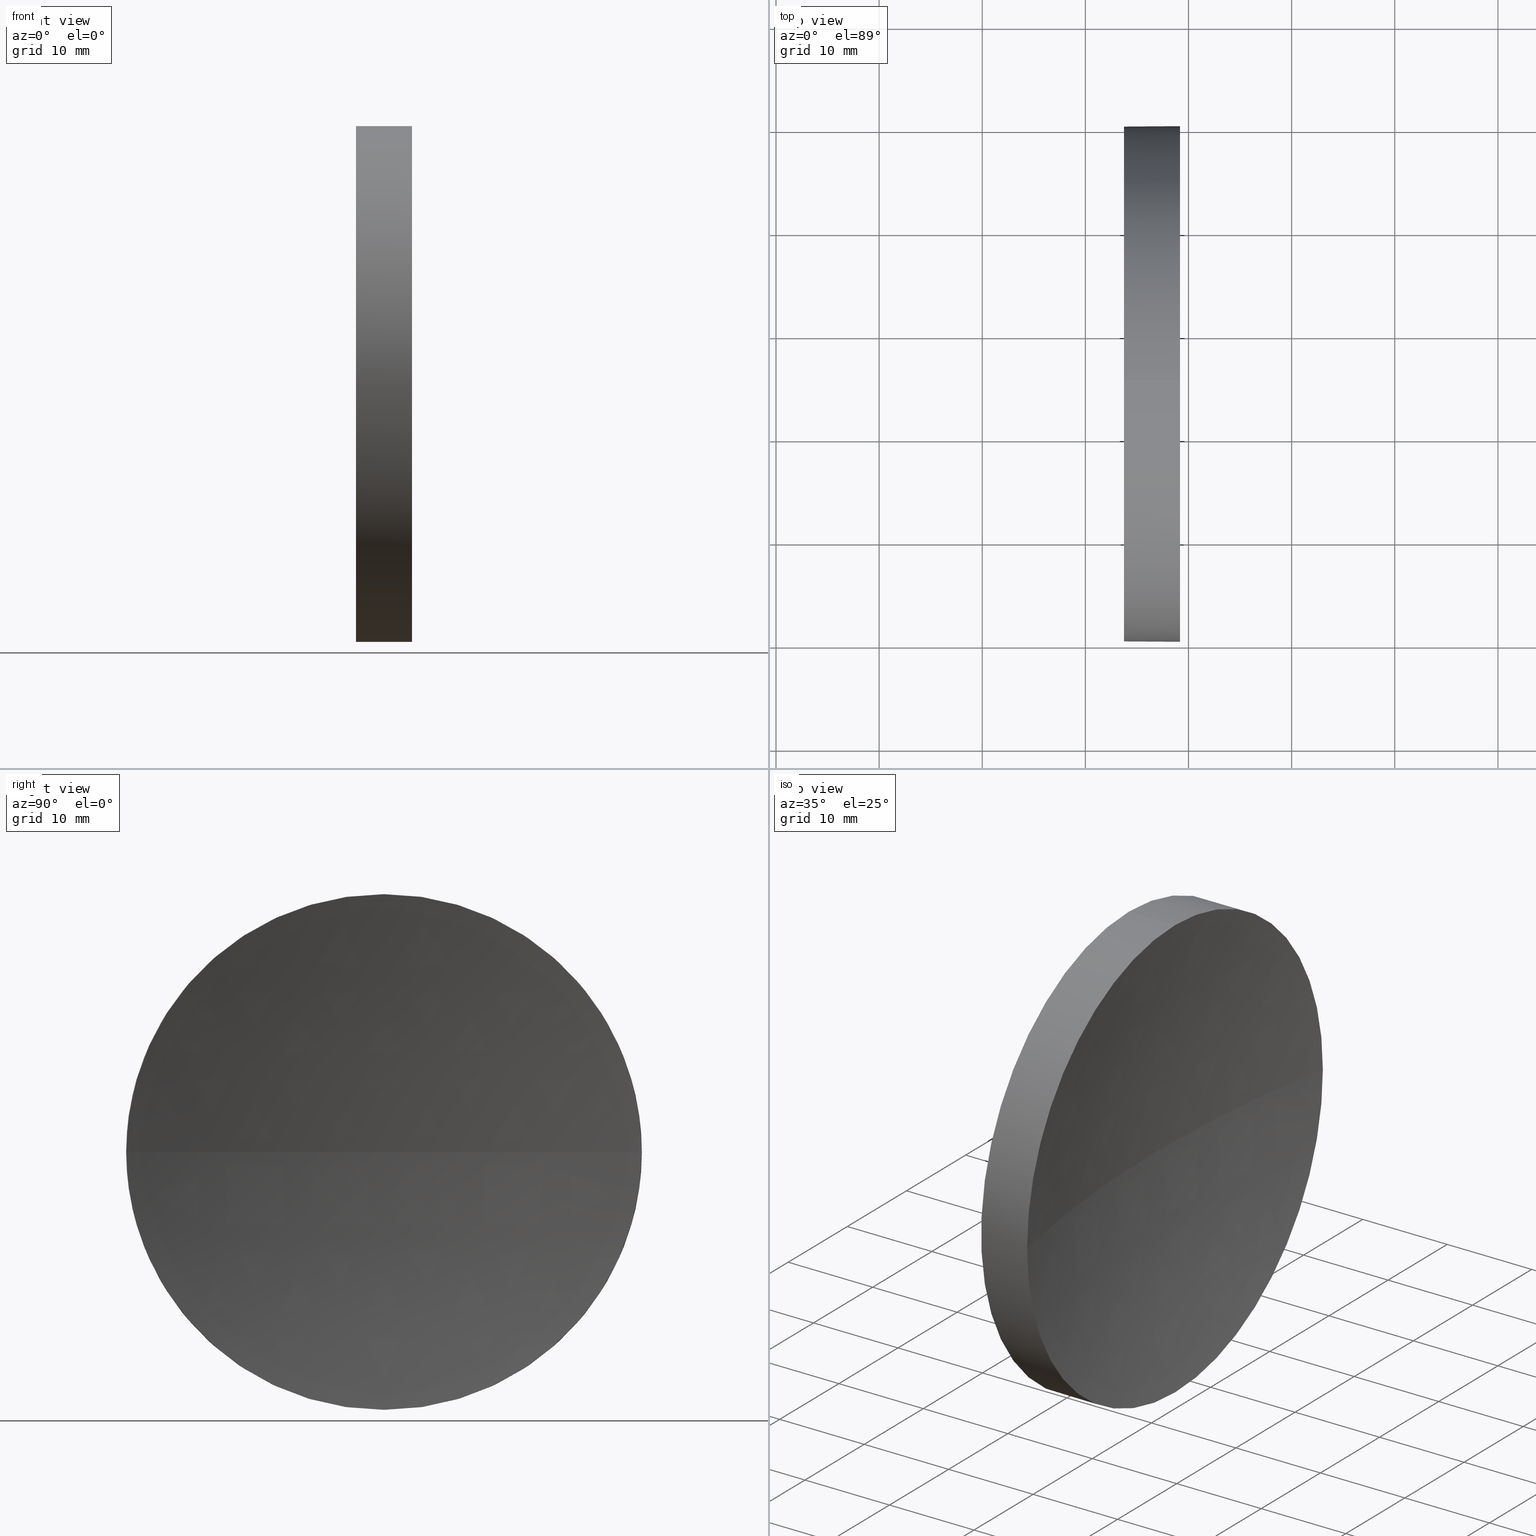
[diagram: canonical four-view strip — front | top / right | iso, engineering-drawing reading convention]
A machine part, canonical four-view strip (front | top / right | iso — engineering-drawing reading convention). The complete STEP part file that produces these views, byte-faithful:
ISO-10303-21;
HEADER;
FILE_DESCRIPTION (( 'STEP AP214' ),
    '1' );
FILE_NAME ('120058.STEP',
    '2019-06-18T01:45:30',
    ( '' ),
    ( '' ),
    'SwSTEP 2.0',
    'SolidWorks 2016',
    '' );
FILE_SCHEMA (( 'AUTOMOTIVE_DESIGN' ));
ENDSEC;

DATA;
#1 = SURFACE_STYLE_USAGE ( .BOTH. , #170 ) ;
#2 = FACE_OUTER_BOUND ( 'NONE', #151, .T. ) ;
#3 = ADVANCED_FACE ( 'NONE', ( #9 ), #111, .F. ) ;
#4 = AXIS2_PLACEMENT_3D ( 'NONE', #158, #65, #68 ) ;
#5 = EDGE_CURVE ( 'NONE', #178, #23, #133, .T. ) ;
#6 = ORIENTED_EDGE ( 'NONE', *, *, #5, .T. ) ;
#7 = DIRECTION ( 'NONE',  ( -1.000000000000000000, -0.0000000000000000000, -0.0000000000000000000 ) ) ;
#8 = FACE_OUTER_BOUND ( 'NONE', #156, .T. ) ;
#9 = FACE_OUTER_BOUND ( 'NONE', #19, .T. ) ;
#10 = CYLINDRICAL_SURFACE ( 'NONE', #149, 24.99999999999998600 ) ;
#11 = ORIENTED_EDGE ( 'NONE', *, *, #84, .T. ) ;
#12 =( LENGTH_UNIT ( ) NAMED_UNIT ( * ) SI_UNIT ( .MILLI., .METRE. ) );
#13 = CARTESIAN_POINT ( 'NONE',  ( 113.7394371346435000, 65.15563045701519200, 24.99999999999999300 ) ) ;
#14 = ORIENTED_EDGE ( 'NONE', *, *, #129, .T. ) ;
#15 = DIRECTION ( 'NONE',  ( 0.0000000000000000000, 0.0000000000000000000, 1.000000000000000000 ) ) ;
#16 = DIRECTION ( 'NONE',  ( -1.000000000000000000, -0.0000000000000000000, -0.0000000000000000000 ) ) ;
#17 =( LENGTH_UNIT ( ) NAMED_UNIT ( * ) SI_UNIT ( .MILLI., .METRE. ) );
#18 = AXIS2_PLACEMENT_3D ( 'NONE', #35, #63, #175 ) ;
#19 = EDGE_LOOP ( 'NONE', ( #145, #11, #109, #75 ) ) ;
#20 = CIRCLE ( 'NONE', #43, 24.99999999999998200 ) ;
#21 = EDGE_CURVE ( 'NONE', #163, #178, #144, .T. ) ;
#22 = CIRCLE ( 'NONE', #92, 24.99999999999998200 ) ;
#23 = VERTEX_POINT ( 'NONE', #13 ) ;
#24 = SURFACE_SIDE_STYLE ('',( #166 ) ) ;
#25 = CIRCLE ( 'NONE', #120, 129.2399999999999800 ) ;
#26 = CARTESIAN_POINT ( 'NONE',  ( 119.1804718391806000, 65.15563045701519200, 0.0000000000000000000 ) ) ;
#27 = PLANE ( 'NONE',  #108 ) ;
#28 = ORIENTED_EDGE ( 'NONE', *, *, #21, .T. ) ;
#29 = DIRECTION ( 'NONE',  ( 1.000000000000000000, 0.0000000000000000000, 0.0000000000000000000 ) ) ;
#30 = UNCERTAINTY_MEASURE_WITH_UNIT (LENGTH_MEASURE( 1.000000000000000100E-005 ), #69, 'distance_accuracy_value', 'NONE');
#31 = DIRECTION ( 'NONE',  ( 0.0000000000000000000, 0.0000000000000000000, 1.000000000000000000 ) ) ;
#32 = DIRECTION ( 'NONE',  ( 0.0000000000000000000, 0.0000000000000000000, 1.000000000000000000 ) ) ;
#33 = AXIS2_PLACEMENT_3D ( 'NONE', #138, #102, #137 ) ;
#34 = PRODUCT ( '120058', '120058', '', ( #185 ) ) ;
#35 = CARTESIAN_POINT ( 'NONE',  ( 119.1804718391806000, 65.15563045701519200, 0.0000000000000000000 ) ) ;
#36 = MECHANICAL_DESIGN_GEOMETRIC_PRESENTATION_REPRESENTATION (  '', ( #136 ), #122 ) ;
#37 = ORIENTED_EDGE ( 'NONE', *, *, #112, .T. ) ;
#38 = PRODUCT_RELATED_PRODUCT_CATEGORY ( 'part', '', ( #34 ) ) ;
#39 = PRODUCT_DEFINITION ( 'δ֪', '', #179, #96 ) ;
#40 = CIRCLE ( 'NONE', #80, 129.2399999999999800 ) ;
#41 = APPLICATION_CONTEXT ( 'automotive_design' ) ;
#42 = FACE_OUTER_BOUND ( 'NONE', #56, .T. ) ;
#43 = AXIS2_PLACEMENT_3D ( 'NONE', #107, #130, #31 ) ;
#44 = DIRECTION ( 'NONE',  ( 0.0000000000000000000, 0.0000000000000000000, 1.000000000000000000 ) ) ;
#45 = DIRECTION ( 'NONE',  ( 0.0000000000000000000, -1.000000000000000000, 0.0000000000000000000 ) ) ;
#46 = ORIENTED_EDGE ( 'NONE', *, *, #5, .F. ) ;
#47 = CARTESIAN_POINT ( 'NONE',  ( 116.7394371346435000, 65.15563045701517800, 0.0000000000000000000 ) ) ;
#48 = ADVANCED_FACE ( 'NONE', ( #42 ), #27, .F. ) ;
#49 = CARTESIAN_POINT ( 'NONE',  ( 105.6218371238301200, 65.15563045701519200, 24.99999999999998600 ) ) ;
#50 = CARTESIAN_POINT ( 'NONE',  ( 119.1804718391806000, 65.15563045701519200, -24.99999999999998200 ) ) ;
#51 = ORIENTED_EDGE ( 'NONE', *, *, #169, .T. ) ;
#52 = ORIENTED_EDGE ( 'NONE', *, *, #72, .T. ) ;
#53 = ORIENTED_EDGE ( 'NONE', *, *, #66, .T. ) ;
#54 = UNCERTAINTY_MEASURE_WITH_UNIT (LENGTH_MEASURE( 1.000000000000000100E-005 ), #12, 'distance_accuracy_value', 'NONE');
#55 = SPHERICAL_SURFACE ( 'NONE', #119, 129.2399999999999800 ) ;
#56 = EDGE_LOOP ( 'NONE', ( #165, #6 ) ) ;
#57 =( NAMED_UNIT ( * ) SI_UNIT ( $, .STERADIAN. ) SOLID_ANGLE_UNIT ( ) );
#58 = ORIENTED_EDGE ( 'NONE', *, *, #169, .F. ) ;
#59 = DIRECTION ( 'NONE',  ( -1.000000000000000000, -0.0000000000000000000, -0.0000000000000000000 ) ) ;
#60 = MECHANICAL_DESIGN_GEOMETRIC_PRESENTATION_REPRESENTATION (  '', ( #142 ), #78 ) ;
#61 = ADVANCED_FACE ( 'NONE', ( #8 ), #10, .T. ) ;
#62 = CARTESIAN_POINT ( 'NONE',  ( 113.7394371346435000, 65.15563045701519200, 0.0000000000000000000 ) ) ;
#63 = DIRECTION ( 'NONE',  ( -1.000000000000000000, -0.0000000000000000000, -0.0000000000000000000 ) ) ;
#64 = CARTESIAN_POINT ( 'NONE',  ( 119.1804718391806000, 65.15563045701519200, 0.0000000000000000000 ) ) ;
#65 = DIRECTION ( 'NONE',  ( 0.0000000000000000000, 0.0000000000000000000, 1.000000000000000000 ) ) ;
#66 = EDGE_CURVE ( 'NONE', #131, #23, #116, .T. ) ;
#67 = ADVANCED_BREP_SHAPE_REPRESENTATION ( '120058', ( #110, #4 ), #89 ) ;
#68 = DIRECTION ( 'NONE',  ( 1.000000000000000000, 0.0000000000000000000, 0.0000000000000000000 ) ) ;
#69 =( LENGTH_UNIT ( ) NAMED_UNIT ( * ) SI_UNIT ( .MILLI., .METRE. ) );
#70 = DIRECTION ( 'NONE',  ( 0.0000000000000000000, -1.000000000000000000, -1.224646799147353200E-016 ) ) ;
#71 = FILL_AREA_STYLE ('',( #150 ) ) ;
#72 = EDGE_CURVE ( 'NONE', #97, #163, #181, .T. ) ;
#73 = DIRECTION ( 'NONE',  ( -1.000000000000000000, -0.0000000000000000000, -0.0000000000000000000 ) ) ;
#74 = DIRECTION ( 'NONE',  ( 0.0000000000000000000, 0.0000000000000000000, 1.000000000000000000 ) ) ;
#75 = ORIENTED_EDGE ( 'NONE', *, *, #129, .F. ) ;
#76 = CARTESIAN_POINT ( 'NONE',  ( 245.9794371346434900, 65.15563045701519200, 0.0000000000000000000 ) ) ;
#77 = DIRECTION ( 'NONE',  ( -1.000000000000000000, 0.0000000000000000000, 0.0000000000000000000 ) ) ;
#78 =( GEOMETRIC_REPRESENTATION_CONTEXT ( 3 ) GLOBAL_UNCERTAINTY_ASSIGNED_CONTEXT ( ( #30 ) ) GLOBAL_UNIT_ASSIGNED_CONTEXT ( ( #69, #135, #57 ) ) REPRESENTATION_CONTEXT ( 'NONE', 'WORKASPACE' ) );
#79 = EDGE_LOOP ( 'NONE', ( #104, #148, #58, #160 ) ) ;
#80 = AXIS2_PLACEMENT_3D ( 'NONE', #113, #100, #70 ) ;
#81 = ORIENTED_EDGE ( 'NONE', *, *, #21, .F. ) ;
#82 =( NAMED_UNIT ( * ) SI_UNIT ( $, .STERADIAN. ) SOLID_ANGLE_UNIT ( ) );
#83 = DIRECTION ( 'NONE',  ( -1.000000000000000000, -0.0000000000000000000, -0.0000000000000000000 ) ) ;
#84 = EDGE_CURVE ( 'NONE', #97, #85, #40, .T. ) ;
#85 = VERTEX_POINT ( 'NONE', #47 ) ;
#86 = CARTESIAN_POINT ( 'NONE',  ( 119.1804718391806000, 90.15563045701516400, 3.061616997868378300E-015 ) ) ;
#87 = ORIENTED_EDGE ( 'NONE', *, *, #176, .F. ) ;
#88 = CARTESIAN_POINT ( 'NONE',  ( 113.7394371346435000, 65.15563045701519200, -24.99999999999999300 ) ) ;
#89 =( GEOMETRIC_REPRESENTATION_CONTEXT ( 3 ) GLOBAL_UNCERTAINTY_ASSIGNED_CONTEXT ( ( #54 ) ) GLOBAL_UNIT_ASSIGNED_CONTEXT ( ( #12, #182, #82 ) ) REPRESENTATION_CONTEXT ( 'NONE', 'WORKASPACE' ) );
#90 = DIRECTION ( 'NONE',  ( -1.000000000000000000, -0.0000000000000000000, -0.0000000000000000000 ) ) ;
#91 = SURFACE_STYLE_FILL_AREA ( #71 ) ;
#92 = AXIS2_PLACEMENT_3D ( 'NONE', #64, #90, #105 ) ;
#93 = VERTEX_POINT ( 'NONE', #152 ) ;
#94 = AXIS2_PLACEMENT_3D ( 'NONE', #155, #115, #45 ) ;
#95 = FILL_AREA_STYLE_COLOUR ( '', #101 ) ;
#96 = PRODUCT_DEFINITION_CONTEXT ( 'detailed design', #98, 'design' ) ;
#97 = VERTEX_POINT ( 'NONE', #86 ) ;
#98 = APPLICATION_CONTEXT ( 'automotive_design' ) ;
#99 = APPLICATION_PROTOCOL_DEFINITION ( 'draft international standard', 'automotive_design', 1998, #98 ) ;
#100 = DIRECTION ( 'NONE',  ( 0.0000000000000000000, -1.224646799147353200E-016, 1.000000000000000000 ) ) ;
#101 = COLOUR_RGB ( '',1.000000000000000000, 1.000000000000000000, 1.000000000000000000 ) ;
#102 = DIRECTION ( 'NONE',  ( -1.000000000000000000, -0.0000000000000000000, -0.0000000000000000000 ) ) ;
#103 = PRESENTATION_LAYER_ASSIGNMENT (  '', '', ( #136 ) ) ;
#104 = ORIENTED_EDGE ( 'NONE', *, *, #84, .F. ) ;
#105 = DIRECTION ( 'NONE',  ( 0.0000000000000000000, 0.0000000000000000000, 1.000000000000000000 ) ) ;
#106 = CARTESIAN_POINT ( 'NONE',  ( 245.9794371346434900, 65.15563045701519200, 0.0000000000000000000 ) ) ;
#107 = CARTESIAN_POINT ( 'NONE',  ( 119.1804718391806000, 65.15563045701519200, 0.0000000000000000000 ) ) ;
#108 = AXIS2_PLACEMENT_3D ( 'NONE', #62, #29, #172 ) ;
#109 = ORIENTED_EDGE ( 'NONE', *, *, #124, .F. ) ;
#110 = MANIFOLD_SOLID_BREP ( '��ת1', #161 ) ;
#111 = SPHERICAL_SURFACE ( 'NONE', #94, 129.2399999999999800 ) ;
#112 = EDGE_CURVE ( 'NONE', #131, #97, #22, .T. ) ;
#113 = CARTESIAN_POINT ( 'NONE',  ( 245.9794371346434900, 65.15563045701519200, 0.0000000000000000000 ) ) ;
#114 = FACE_OUTER_BOUND ( 'NONE', #79, .T. ) ;
#115 = DIRECTION ( 'NONE',  ( 0.0000000000000000000, 0.0000000000000000000, 1.000000000000000000 ) ) ;
#116 = LINE ( 'NONE', #49, #121 ) ;
#117 = DIRECTION ( 'NONE',  ( 0.0000000000000000000, 0.0000000000000000000, 1.000000000000000000 ) ) ;
#118 = DIRECTION ( 'NONE',  ( 0.0000000000000000000, -1.000000000000000000, 0.0000000000000000000 ) ) ;
#119 = AXIS2_PLACEMENT_3D ( 'NONE', #106, #117, #118 ) ;
#120 = AXIS2_PLACEMENT_3D ( 'NONE', #76, #159, #77 ) ;
#121 = VECTOR ( 'NONE', #73, 1000.000000000000000 ) ;
#122 =( GEOMETRIC_REPRESENTATION_CONTEXT ( 3 ) GLOBAL_UNCERTAINTY_ASSIGNED_CONTEXT ( ( #127 ) ) GLOBAL_UNIT_ASSIGNED_CONTEXT ( ( #17, #174, #173 ) ) REPRESENTATION_CONTEXT ( 'NONE', 'WORKASPACE' ) );
#123 = ORIENTED_EDGE ( 'NONE', *, *, #66, .F. ) ;
#124 = EDGE_CURVE ( 'NONE', #93, #85, #25, .T. ) ;
#125 = VECTOR ( 'NONE', #83, 1000.000000000000000 ) ;
#126 = SHAPE_DEFINITION_REPRESENTATION ( #146, #67 ) ;
#127 = UNCERTAINTY_MEASURE_WITH_UNIT (LENGTH_MEASURE( 1.000000000000000100E-005 ), #17, 'distance_accuracy_value', 'NONE');
#128 = CARTESIAN_POINT ( 'NONE',  ( 113.7394371346435000, 65.15563045701519200, 0.0000000000000000000 ) ) ;
#129 = EDGE_CURVE ( 'NONE', #163, #93, #20, .T. ) ;
#130 = DIRECTION ( 'NONE',  ( -1.000000000000000000, -0.0000000000000000000, -0.0000000000000000000 ) ) ;
#131 = VERTEX_POINT ( 'NONE', #167 ) ;
#132 = SURFACE_STYLE_USAGE ( .BOTH. , #24 ) ;
#133 = CIRCLE ( 'NONE', #33, 24.99999999999999300 ) ;
#134 = AXIS2_PLACEMENT_3D ( 'NONE', #139, #7, #74 ) ;
#135 =( NAMED_UNIT ( * ) PLANE_ANGLE_UNIT ( ) SI_UNIT ( $, .RADIAN. ) );
#136 = STYLED_ITEM ( 'NONE', ( #140 ), #110 ) ;
#137 = DIRECTION ( 'NONE',  ( 0.0000000000000000000, 0.0000000000000000000, 1.000000000000000000 ) ) ;
#138 = CARTESIAN_POINT ( 'NONE',  ( 113.7394371346435000, 65.15563045701519200, 0.0000000000000000000 ) ) ;
#139 = CARTESIAN_POINT ( 'NONE',  ( 105.6218371238301200, 65.15563045701519200, 0.0000000000000000000 ) ) ;
#140 = PRESENTATION_STYLE_ASSIGNMENT (( #1 ) ) ;
#141 = COLOUR_RGB ( '',1.000000000000000000, 1.000000000000000000, 1.000000000000000000 ) ;
#142 = STYLED_ITEM ( 'NONE', ( #162 ), #67 ) ;
#143 = AXIS2_PLACEMENT_3D ( 'NONE', #128, #157, #32 ) ;
#144 = LINE ( 'NONE', #153, #125 ) ;
#145 = ORIENTED_EDGE ( 'NONE', *, *, #72, .F. ) ;
#146 = PRODUCT_DEFINITION_SHAPE ( 'NONE', 'NONE',  #39 ) ;
#147 = FILL_AREA_STYLE ('',( #95 ) ) ;
#148 = ORIENTED_EDGE ( 'NONE', *, *, #112, .F. ) ;
#149 = AXIS2_PLACEMENT_3D ( 'NONE', #186, #16, #44 ) ;
#150 = FILL_AREA_STYLE_COLOUR ( '', #141 ) ;
#151 = EDGE_LOOP ( 'NONE', ( #52, #28, #87, #123, #37 ) ) ;
#152 = CARTESIAN_POINT ( 'NONE',  ( 119.1804718391806000, 40.15563045701522800, 0.0000000000000000000 ) ) ;
#153 = CARTESIAN_POINT ( 'NONE',  ( 105.6218371238301200, 65.15563045701519200, -24.99999999999998600 ) ) ;
#154 = PRESENTATION_LAYER_ASSIGNMENT (  '', '', ( #142 ) ) ;
#155 = CARTESIAN_POINT ( 'NONE',  ( 245.9794371346434900, 65.15563045701519200, 0.0000000000000000000 ) ) ;
#156 = EDGE_LOOP ( 'NONE', ( #81, #14, #51, #53, #46 ) ) ;
#157 = DIRECTION ( 'NONE',  ( -1.000000000000000000, -0.0000000000000000000, -0.0000000000000000000 ) ) ;
#158 = CARTESIAN_POINT ( 'NONE',  ( 0.0000000000000000000, 0.0000000000000000000, 0.0000000000000000000 ) ) ;
#159 = DIRECTION ( 'NONE',  ( 0.0000000000000000000, 0.0000000000000000000, -1.000000000000000000 ) ) ;
#160 = ORIENTED_EDGE ( 'NONE', *, *, #124, .T. ) ;
#161 = CLOSED_SHELL ( 'NONE', ( #177, #3, #171, #61, #48 ) ) ;
#162 = PRESENTATION_STYLE_ASSIGNMENT (( #132 ) ) ;
#163 = VERTEX_POINT ( 'NONE', #50 ) ;
#164 = CIRCLE ( 'NONE', #18, 24.99999999999998200 ) ;
#165 = ORIENTED_EDGE ( 'NONE', *, *, #176, .T. ) ;
#166 = SURFACE_STYLE_FILL_AREA ( #147 ) ;
#167 = CARTESIAN_POINT ( 'NONE',  ( 119.1804718391806000, 65.15563045701519200, 24.99999999999998200 ) ) ;
#168 = CYLINDRICAL_SURFACE ( 'NONE', #134, 24.99999999999998600 ) ;
#169 = EDGE_CURVE ( 'NONE', #93, #131, #164, .T. ) ;
#170 = SURFACE_SIDE_STYLE ('',( #91 ) ) ;
#171 = ADVANCED_FACE ( 'NONE', ( #114 ), #55, .F. ) ;
#172 = DIRECTION ( 'NONE',  ( 0.0000000000000000000, 0.0000000000000000000, -1.000000000000000000 ) ) ;
#173 =( NAMED_UNIT ( * ) SI_UNIT ( $, .STERADIAN. ) SOLID_ANGLE_UNIT ( ) );
#174 =( NAMED_UNIT ( * ) PLANE_ANGLE_UNIT ( ) SI_UNIT ( $, .RADIAN. ) );
#175 = DIRECTION ( 'NONE',  ( 0.0000000000000000000, 0.0000000000000000000, 1.000000000000000000 ) ) ;
#176 = EDGE_CURVE ( 'NONE', #23, #178, #183, .T. ) ;
#177 = ADVANCED_FACE ( 'NONE', ( #2 ), #168, .T. ) ;
#178 = VERTEX_POINT ( 'NONE', #88 ) ;
#179 = PRODUCT_DEFINITION_FORMATION_WITH_SPECIFIED_SOURCE ( '�κ�', '', #34, .NOT_KNOWN. ) ;
#180 = AXIS2_PLACEMENT_3D ( 'NONE', #26, #59, #15 ) ;
#181 = CIRCLE ( 'NONE', #180, 24.99999999999998200 ) ;
#182 =( NAMED_UNIT ( * ) PLANE_ANGLE_UNIT ( ) SI_UNIT ( $, .RADIAN. ) );
#183 = CIRCLE ( 'NONE', #143, 24.99999999999999300 ) ;
#184 = APPLICATION_PROTOCOL_DEFINITION ( 'draft international standard', 'automotive_design', 1998, #41 ) ;
#185 = PRODUCT_CONTEXT ( 'NONE', #41, 'mechanical' ) ;
#186 = CARTESIAN_POINT ( 'NONE',  ( 105.6218371238301200, 65.15563045701519200, 0.0000000000000000000 ) ) ;
ENDSEC;
END-ISO-10303-21;
